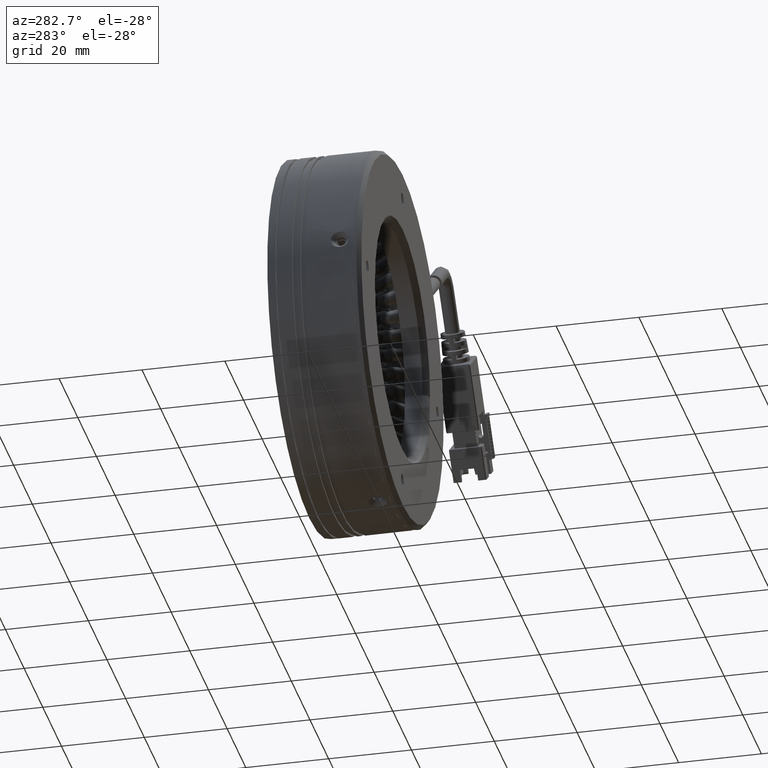
[diagram: clean part render]
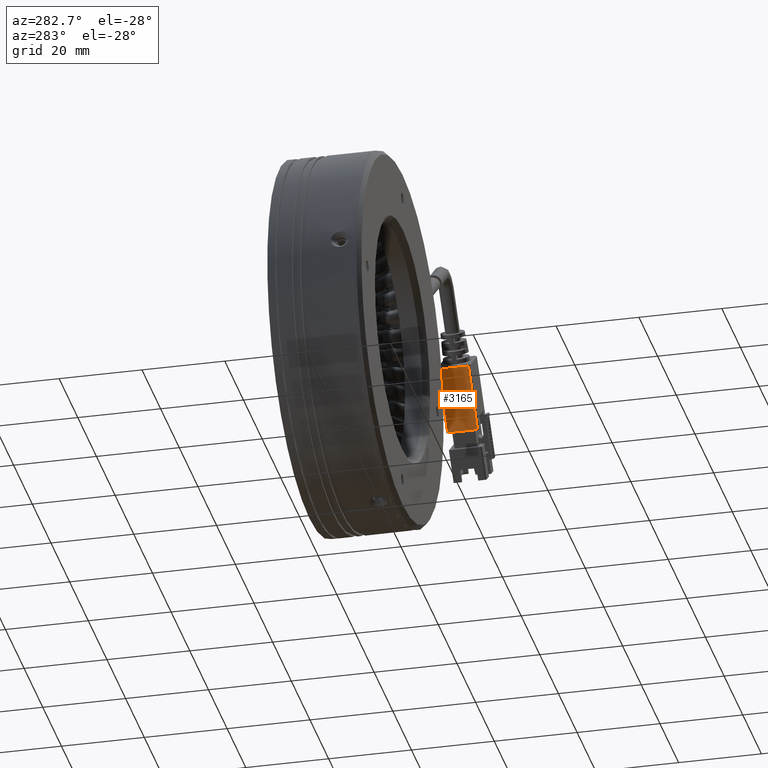
[diagram: same view with one face highlighted and labeled with its STEP entity id]
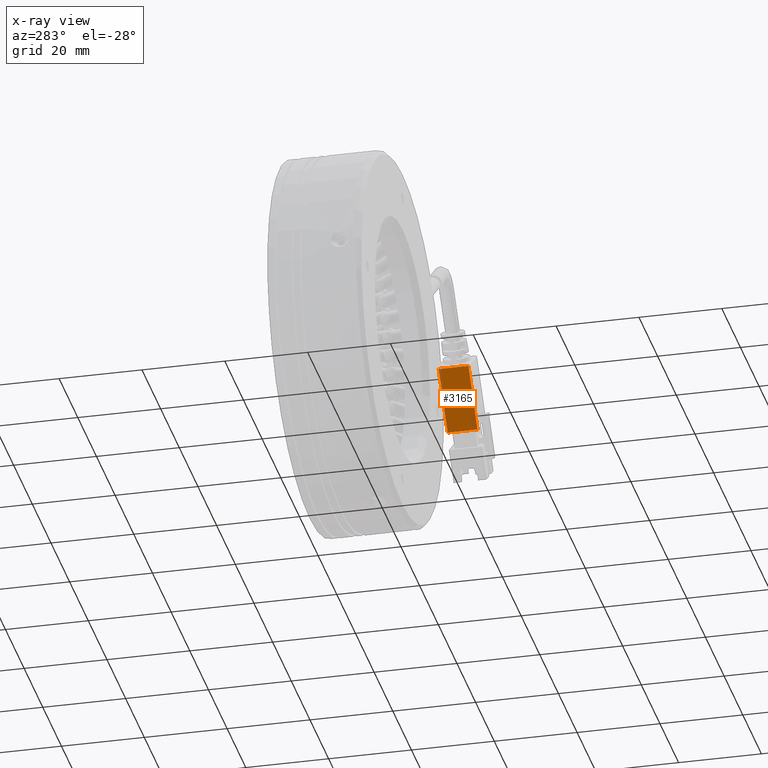
[diagram: x-ray of the same camera — body ghosted, the highlighted face saturated]
A machine part, auxiliary view. The second image highlights one B-rep face of the part: STEP entity #3165.
The next image is the same camera in x-ray: the body ghosted, the highlighted face saturated — about 2% of this face is hidden behind the body in this view.
In plain terms, the highlighted planar face has unit normal (0.7695, -0, 0.6387).
Its self-contained STEP definition (entity closure, byte-faithful):
#3165 = ADVANCED_FACE ( 'NONE', ( #113762 ), #86812, .F. ) ;
#22597 = EDGE_CURVE ( 'NONE', #89400, #97552, #53613, .T. ) ;
#25010 = ORIENTED_EDGE ( 'NONE', *, *, #123329, .F. ) ;
#30603 = DIRECTION ( 'NONE',  ( 4.312980940812307400E-016, 1.000000000000000000, -5.196551735481171100E-016 ) ) ;
#31812 = VECTOR ( 'NONE', #122624, 1000.000000000000000 ) ;
#32305 = ORIENTED_EDGE ( 'NONE', *, *, #22597, .F. ) ;
#42343 = VECTOR ( 'NONE', #77292, 1000.000000000000000 ) ;
#44282 = CARTESIAN_POINT ( 'NONE',  ( 17.04621369494509900, 16.57876601230219600, 26.04993342554663700 ) ) ;
#44723 = EDGE_CURVE ( 'NONE', #104749, #89400, #111586, .T. ) ;
#46961 = CARTESIAN_POINT ( 'NONE',  ( 17.04621369494510200, 23.77876601230219200, 26.04993342554663400 ) ) ;
#53613 = LINE ( 'NONE', #103416, #81262 ) ;
#54798 = CARTESIAN_POINT ( 'NONE',  ( 27.00924195885992100, 23.77876601230218500, 14.04584796215399600 ) ) ;
#56199 = VECTOR ( 'NONE', #127653, 1000.000000000000000 ) ;
#56344 = CARTESIAN_POINT ( 'NONE',  ( 17.04621369494510200, 24.17876601230219400, 26.04993342554663400 ) ) ;
#59003 = ORIENTED_EDGE ( 'NONE', *, *, #83479, .F. ) ;
#60173 = CARTESIAN_POINT ( 'NONE',  ( 27.00924195885991700, 16.57876601230218600, 14.04584796215399900 ) ) ;
#77292 = DIRECTION ( 'NONE',  ( -4.312980940812307400E-016, -1.000000000000000000, 5.196551735481171100E-016 ) ) ;
#81262 = VECTOR ( 'NONE', #30603, 1000.000000000000000 ) ;
#83479 = EDGE_CURVE ( 'NONE', #97552, #134028, #111577, .T. ) ;
#84884 = DIRECTION ( 'NONE',  ( -4.312980940812307400E-016, -1.000000000000000000, 5.196551735481171100E-016 ) ) ;
#84915 = DIRECTION ( 'NONE',  ( 0.7694926579097844900, -4.930380657631323800E-032, 0.6386556579432576300 ) ) ;
#85211 = CARTESIAN_POINT ( 'NONE',  ( 27.00924195885992100, 24.17876601230218400, 14.04584796215399600 ) ) ;
#86812 = PLANE ( 'NONE',  #106474 ) ;
#89400 = VERTEX_POINT ( 'NONE', #120477 ) ;
#97552 = VERTEX_POINT ( 'NONE', #103243 ) ;
#103243 = CARTESIAN_POINT ( 'NONE',  ( 26.88151082727127100, 23.77876601230218500, 14.19974649373595100 ) ) ;
#103403 = EDGE_LOOP ( 'NONE', ( #32305, #133913, #25010, #59003 ) ) ;
#103416 = CARTESIAN_POINT ( 'NONE',  ( 26.88151082727127100, 24.17876601230218400, 14.19974649373595100 ) ) ;
#104749 = VERTEX_POINT ( 'NONE', #44282 ) ;
#106474 = AXIS2_PLACEMENT_3D ( 'NONE', #85211, #84915, #84884 ) ;
#111577 = LINE ( 'NONE', #54798, #56199 ) ;
#111586 = LINE ( 'NONE', #60173, #31812 ) ;
#113762 = FACE_OUTER_BOUND ( 'NONE', #103403, .T. ) ;
#120477 = CARTESIAN_POINT ( 'NONE',  ( 26.88151082727127100, 16.57876601230218600, 14.19974649373595500 ) ) ;
#122624 = DIRECTION ( 'NONE',  ( 0.6386556579432576300, -6.753218087352324900E-016, -0.7694926579097844900 ) ) ;
#123329 = EDGE_CURVE ( 'NONE', #134028, #104749, #125480, .T. ) ;
#125480 = LINE ( 'NONE', #56344, #42343 ) ;
#127653 = DIRECTION ( 'NONE',  ( -0.6386556579432576300, 6.753218087352324900E-016, 0.7694926579097844900 ) ) ;
#133913 = ORIENTED_EDGE ( 'NONE', *, *, #44723, .F. ) ;
#134028 = VERTEX_POINT ( 'NONE', #46961 ) ;